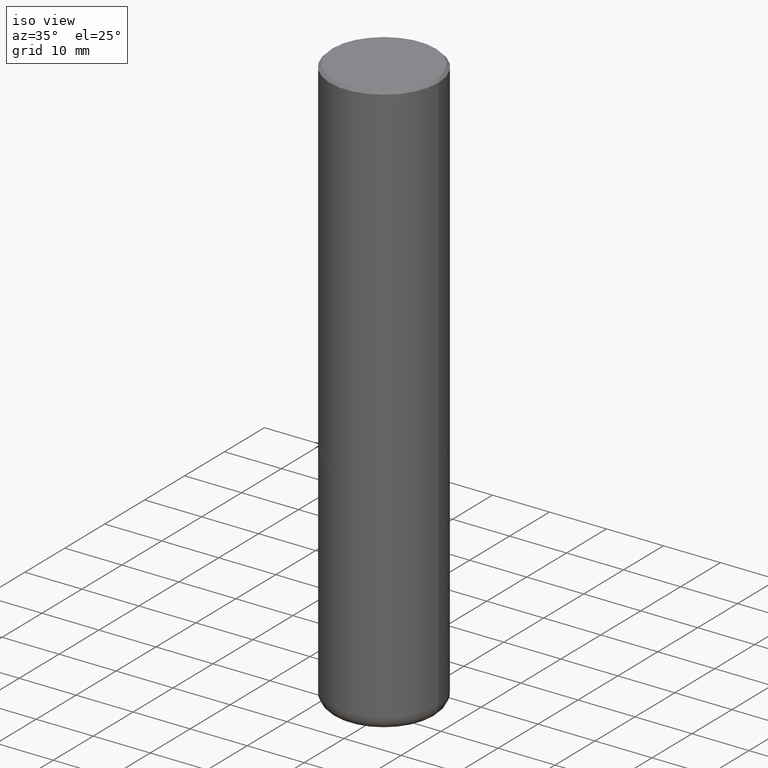
[diagram: clean part render]
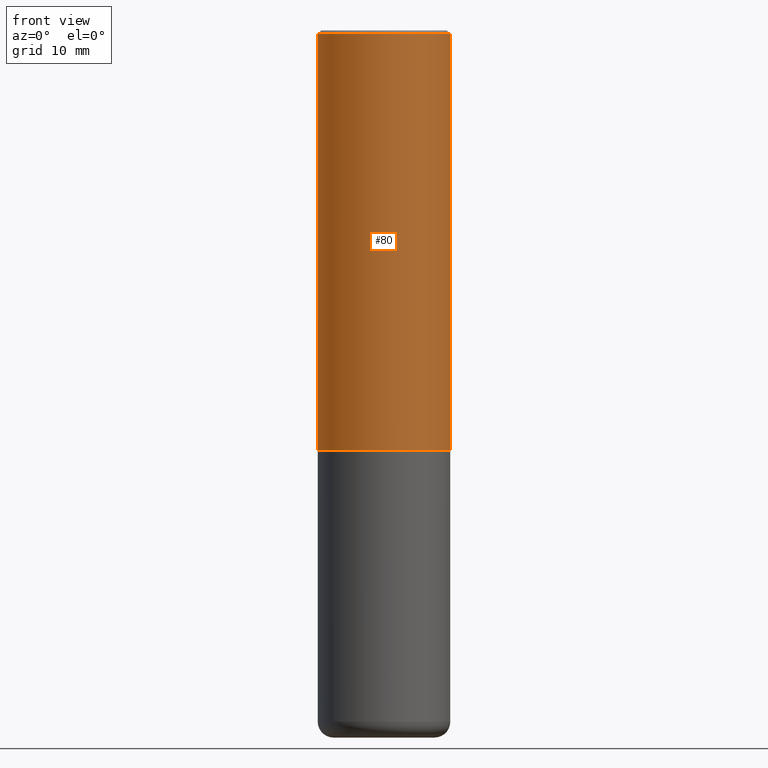
[diagram: tour spotlight — one face highlighted and labeled with its STEP entity id]
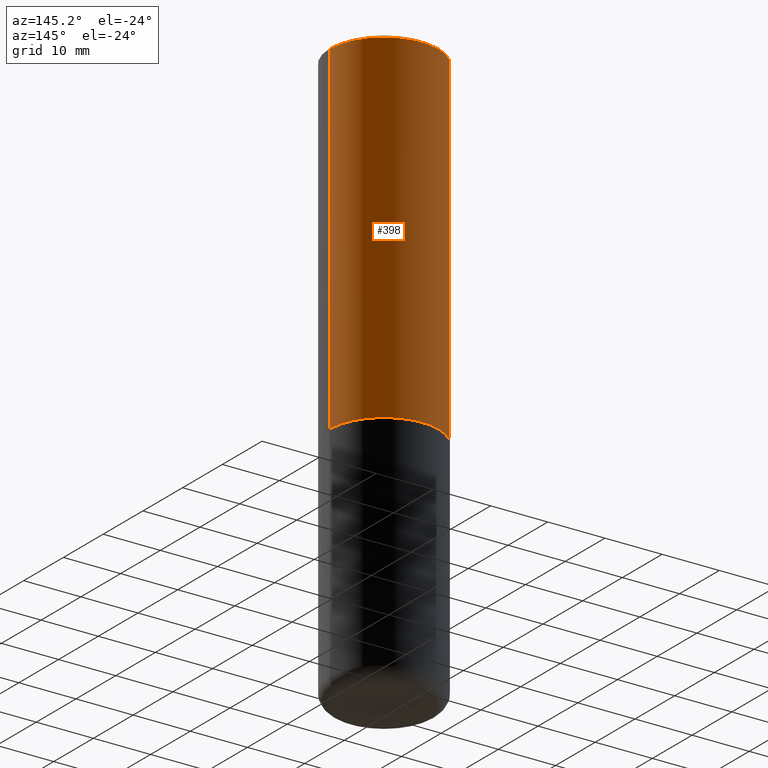
[diagram: tour spotlight — one face highlighted and labeled with its STEP entity id]
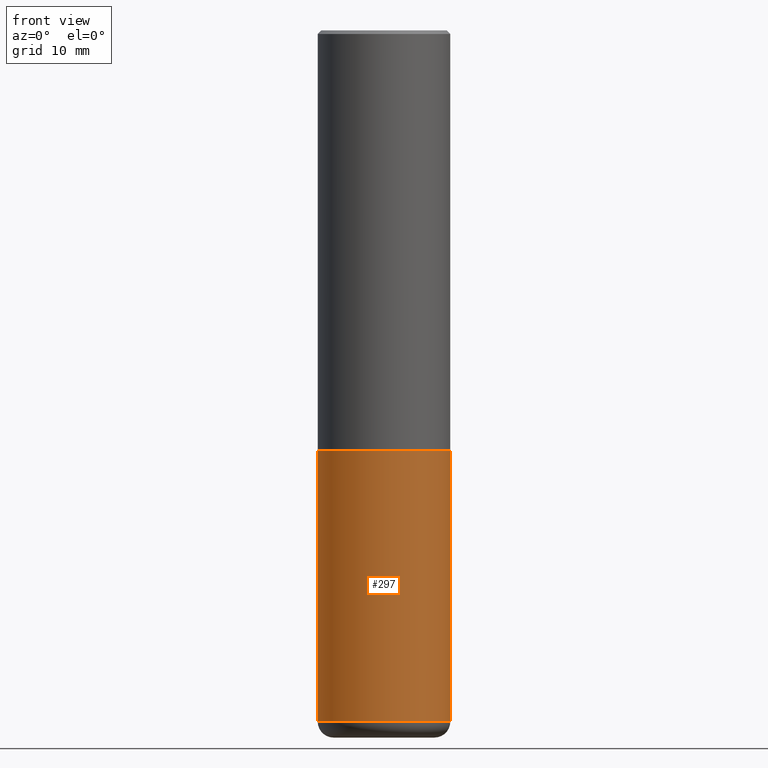
[diagram: tour spotlight — one face highlighted and labeled with its STEP entity id]
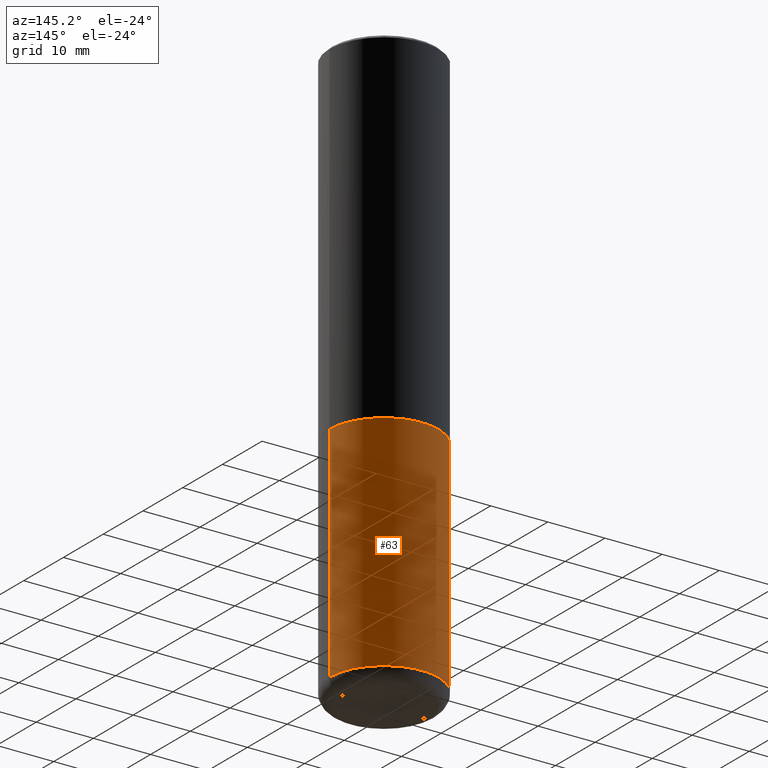
[diagram: tour spotlight — one face highlighted and labeled with its STEP entity id]
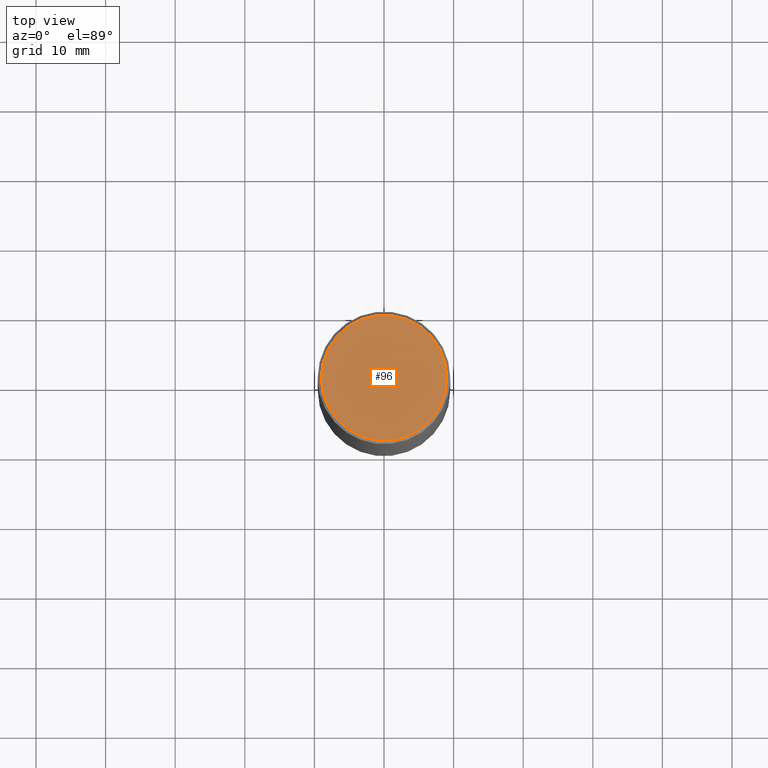
[diagram: tour spotlight — one face highlighted and labeled with its STEP entity id]
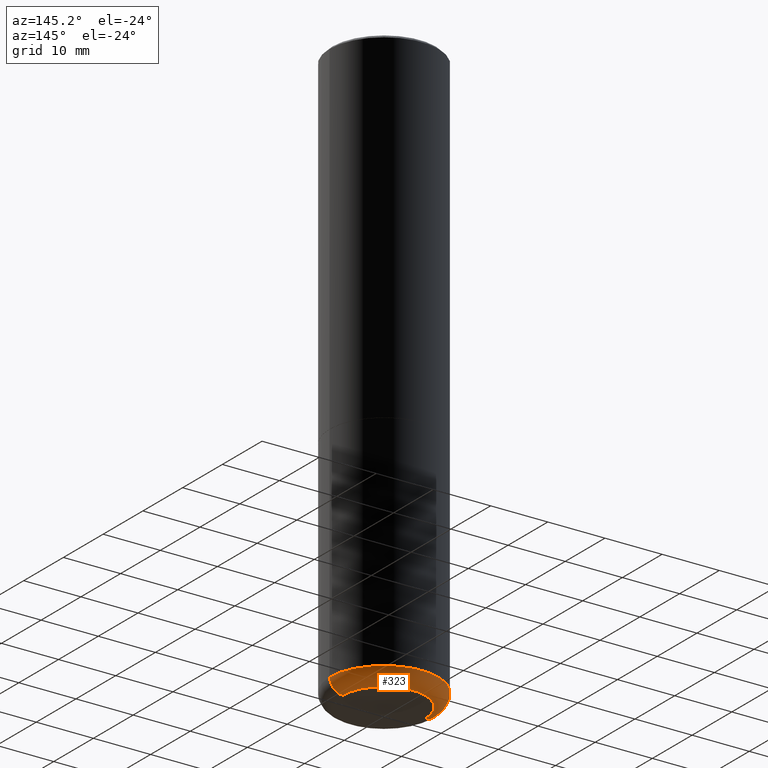
[diagram: tour spotlight — one face highlighted and labeled with its STEP entity id]
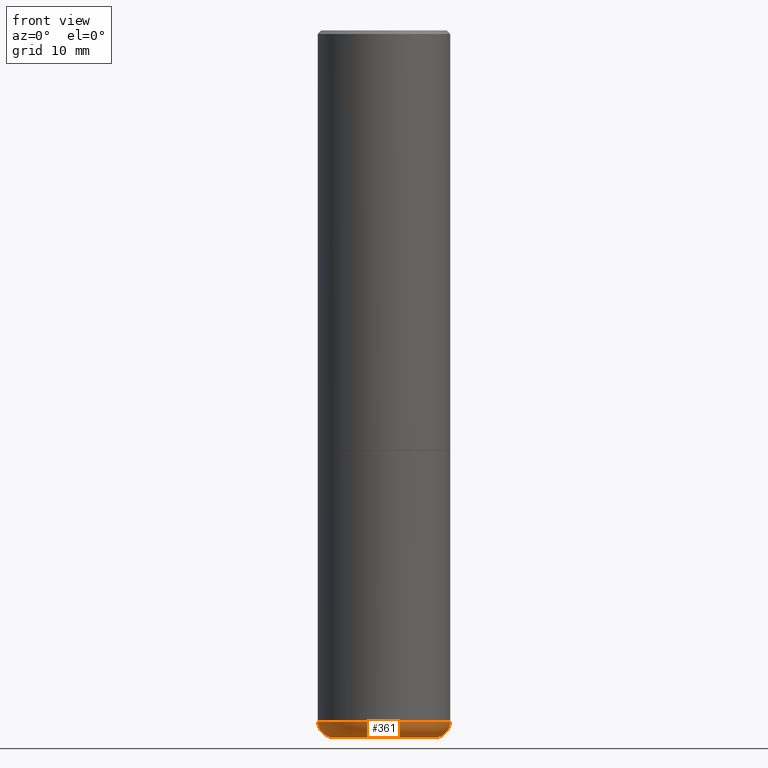
[diagram: tour spotlight — one face highlighted and labeled with its STEP entity id]
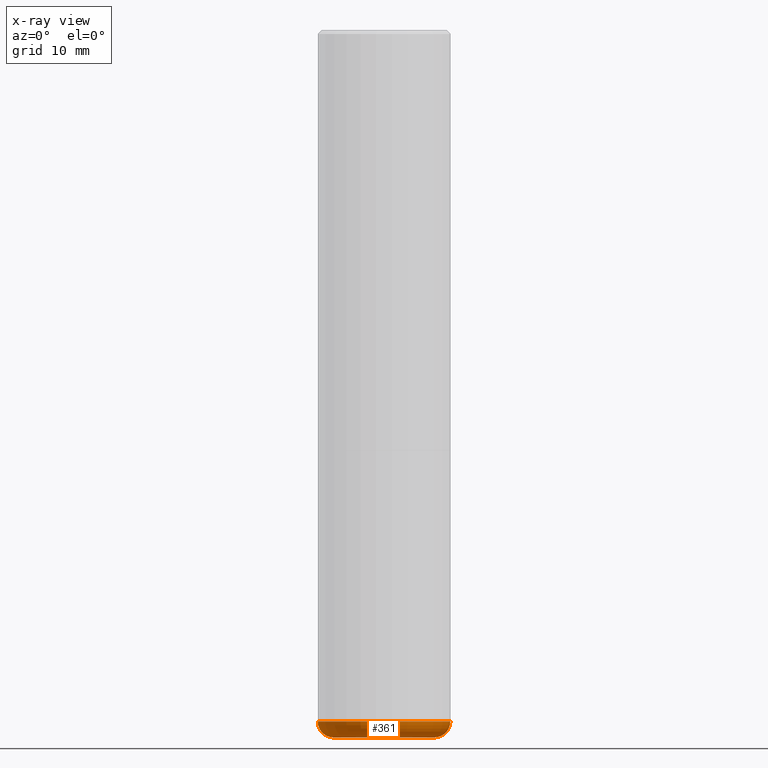
[diagram: x-ray of the same camera — body ghosted, this tour face saturated]
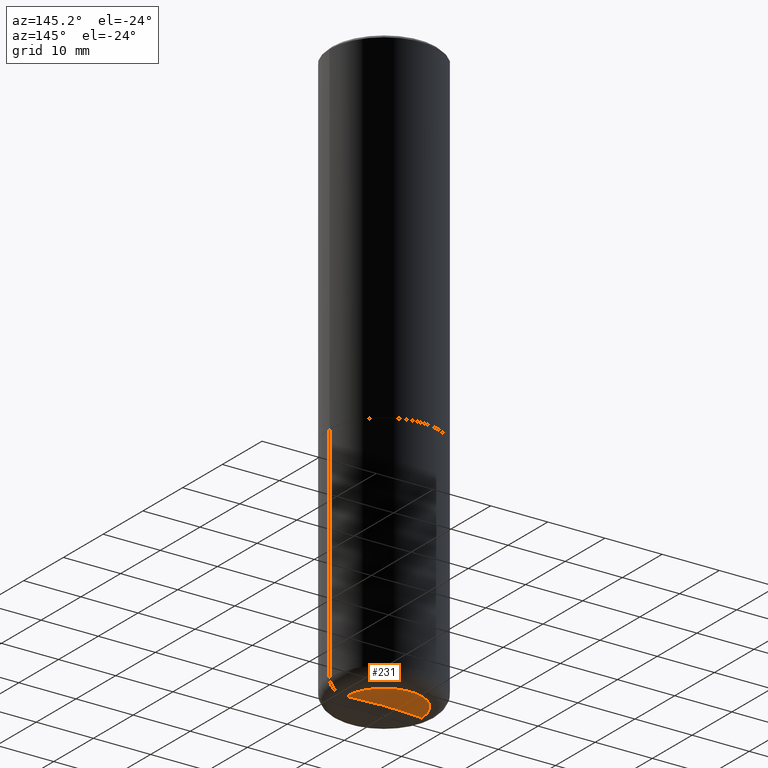
[diagram: tour spotlight — one face highlighted and labeled with its STEP entity id]
A machine part: a face-by-face anatomy tour. The part has 17 B-rep faces; the first image is the clean iso view, then the 8 largest visible faces are spotlighted one at a time (largest first), each with its STEP entity span.

Face 1 — front view, entity #80. In plain terms, the highlighted cylindrical surface (partial cylindrical patch) has radius 9.525 mm, axis along (-0, 0, 1).
Definition (entity closure, byte-faithful):
#21 = VERTEX_POINT ( 'NONE', #400 ) ;
#23 = ORIENTED_EDGE ( 'NONE', *, *, #30, .T. ) ;
#27 = DIRECTION ( 'NONE',  ( -2.445468806185136597E-29, 3.491481338843145583E-15, 1.000000000000000000 ) ) ;
#30 = EDGE_CURVE ( 'NONE', #169, #21, #163, .T. ) ;
#44 = EDGE_CURVE ( 'NONE', #122, #366, #446, .T. ) ;
#61 = CARTESIAN_POINT ( 'NONE',  ( 5.805542945883513814E-29, -8.288776698413627111E-15, -2.373999999999999666 ) ) ;
#71 = EDGE_CURVE ( 'NONE', #21, #366, #183, .T. ) ;
#79 = DIRECTION ( 'NONE',  ( -2.445468806185136877E-29, 3.491481338843145188E-15, 1.000000000000000000 ) ) ;
#80 = ADVANCED_FACE ( 'NONE', ( #178 ), #486, .T. ) ;
#90 = ORIENTED_EDGE ( 'NONE', *, *, #44, .F. ) ;
#98 = DIRECTION ( 'NONE',  ( 1.000000000000000000, -6.982962677686264344E-15, 0.000000000000000000 ) ) ;
#100 = VECTOR ( 'NONE', #292, 39.37007874015748143 ) ;
#103 = AXIS2_PLACEMENT_3D ( 'NONE', #61, #476, #98 ) ;
#106 = CARTESIAN_POINT ( 'NONE',  ( -0.3749999999999995559, -1.514767903494871085E-15, -2.373999999999999666 ) ) ;
#122 = VERTEX_POINT ( 'NONE', #388 ) ;
#132 = CARTESIAN_POINT ( 'NONE',  ( 4.890937612370313446E-31, -6.982962677686349541E-17, -0.02000000000000016695 ) ) ;
#137 = VECTOR ( 'NONE', #79, 39.37007874015748143 ) ;
#148 = CARTESIAN_POINT ( 'NONE',  ( 0.3749999999999992784, -2.642516375941182506E-15, -0.02000000000000016695 ) ) ;
#163 = CIRCLE ( 'NONE', #103, 0.3749999999999996114 ) ;
#169 = VERTEX_POINT ( 'NONE', #106 ) ;
#172 = EDGE_LOOP ( 'NONE', ( #354, #23, #317, #90 ) ) ;
#178 = FACE_OUTER_BOUND ( 'NONE', #172, .T. ) ;
#183 = LINE ( 'NONE', #250, #100 ) ;
#247 = DIRECTION ( 'NONE',  ( 1.000000000000000000, -6.982962677686267499E-15, 0.000000000000000000 ) ) ;
#250 = CARTESIAN_POINT ( 'NONE',  ( 0.3749999999999993894, -2.618611004132345678E-15, 1.828566290923473120E-29 ) ) ;
#254 = CARTESIAN_POINT ( 'NONE',  ( 0.000000000000000000, 0.000000000000000000, 0.000000000000000000 ) ) ;
#279 = EDGE_CURVE ( 'NONE', #169, #122, #307, .T. ) ;
#291 = AXIS2_PLACEMENT_3D ( 'NONE', #254, #27, #409 ) ;
#292 = DIRECTION ( 'NONE',  ( -2.445468806185136877E-29, 3.491481338843145188E-15, 1.000000000000000000 ) ) ;
#307 = LINE ( 'NONE', #418, #137 ) ;
#317 = ORIENTED_EDGE ( 'NONE', *, *, #71, .T. ) ;
#354 = ORIENTED_EDGE ( 'NONE', *, *, #279, .F. ) ;
#366 = VERTEX_POINT ( 'NONE', #148 ) ;
#388 = CARTESIAN_POINT ( 'NONE',  ( -0.3749999999999992784, 2.548781377355481985E-15, -0.02000000000000016695 ) ) ;
#389 = AXIS2_PLACEMENT_3D ( 'NONE', #132, #439, #247 ) ;
#400 = CARTESIAN_POINT ( 'NONE',  ( 0.3749999999999996114, -1.090738770254597397E-14, -2.373999999999999666 ) ) ;
#409 = DIRECTION ( 'NONE',  ( 1.000000000000000000, -6.982962677686266711E-15, 4.876176775795936353E-29 ) ) ;
#418 = CARTESIAN_POINT ( 'NONE',  ( -0.3749999999999993894, 2.664535259100371358E-15, -1.844600658845586515E-29 ) ) ;
#439 = DIRECTION ( 'NONE',  ( -2.445468806185136597E-29, 3.491481338843145583E-15, 1.000000000000000000 ) ) ;
#446 = CIRCLE ( 'NONE', #389, 0.3749999999999992784 ) ;
#476 = DIRECTION ( 'NONE',  ( -2.445468806185136597E-29, 3.491481338843145583E-15, 1.000000000000000000 ) ) ;
#486 = CYLINDRICAL_SURFACE ( 'NONE', #291, 0.3749999999999993894 ) ;

Face 2 — auxiliary view, entity #398. In plain terms, the highlighted cylindrical surface (partial cylindrical patch) has radius 9.525 mm, axis along (-0, 0, 1).
Definition (entity closure, byte-faithful):
#1 = EDGE_CURVE ( 'NONE', #366, #122, #339, .T. ) ;
#5 = DIRECTION ( 'NONE',  ( -2.445468806185136597E-29, 3.491481338843145583E-15, 1.000000000000000000 ) ) ;
#11 = DIRECTION ( 'NONE',  ( 1.000000000000000000, -6.982962677686267499E-15, 0.000000000000000000 ) ) ;
#21 = VERTEX_POINT ( 'NONE', #400 ) ;
#38 = AXIS2_PLACEMENT_3D ( 'NONE', #285, #200, #11 ) ;
#71 = EDGE_CURVE ( 'NONE', #21, #366, #183, .T. ) ;
#79 = DIRECTION ( 'NONE',  ( -2.445468806185136877E-29, 3.491481338843145188E-15, 1.000000000000000000 ) ) ;
#100 = VECTOR ( 'NONE', #292, 39.37007874015748143 ) ;
#106 = CARTESIAN_POINT ( 'NONE',  ( -0.3749999999999995559, -1.514767903494871085E-15, -2.373999999999999666 ) ) ;
#122 = VERTEX_POINT ( 'NONE', #388 ) ;
#137 = VECTOR ( 'NONE', #79, 39.37007874015748143 ) ;
#148 = CARTESIAN_POINT ( 'NONE',  ( 0.3749999999999992784, -2.642516375941182506E-15, -0.02000000000000016695 ) ) ;
#167 = EDGE_LOOP ( 'NONE', ( #425, #380, #240, #245 ) ) ;
#169 = VERTEX_POINT ( 'NONE', #106 ) ;
#183 = LINE ( 'NONE', #250, #100 ) ;
#185 = CARTESIAN_POINT ( 'NONE',  ( 5.805542945883513814E-29, -8.288776698413627111E-15, -2.373999999999999666 ) ) ;
#187 = AXIS2_PLACEMENT_3D ( 'NONE', #185, #5, #338 ) ;
#195 = CYLINDRICAL_SURFACE ( 'NONE', #383, 0.3749999999999993894 ) ;
#200 = DIRECTION ( 'NONE',  ( -2.445468806185136597E-29, 3.491481338843145583E-15, 1.000000000000000000 ) ) ;
#227 = EDGE_CURVE ( 'NONE', #21, #169, #411, .T. ) ;
#240 = ORIENTED_EDGE ( 'NONE', *, *, #1, .F. ) ;
#245 = ORIENTED_EDGE ( 'NONE', *, *, #71, .F. ) ;
#250 = CARTESIAN_POINT ( 'NONE',  ( 0.3749999999999993894, -2.618611004132345678E-15, 1.828566290923473120E-29 ) ) ;
#265 = CARTESIAN_POINT ( 'NONE',  ( 0.000000000000000000, 0.000000000000000000, 0.000000000000000000 ) ) ;
#273 = DIRECTION ( 'NONE',  ( 1.000000000000000000, -6.982962677686266711E-15, 4.876176775795936353E-29 ) ) ;
#279 = EDGE_CURVE ( 'NONE', #169, #122, #307, .T. ) ;
#285 = CARTESIAN_POINT ( 'NONE',  ( 4.890937612370313446E-31, -6.982962677686349541E-17, -0.02000000000000016695 ) ) ;
#292 = DIRECTION ( 'NONE',  ( -2.445468806185136877E-29, 3.491481338843145188E-15, 1.000000000000000000 ) ) ;
#307 = LINE ( 'NONE', #418, #137 ) ;
#338 = DIRECTION ( 'NONE',  ( 1.000000000000000000, -6.982962677686264344E-15, 0.000000000000000000 ) ) ;
#339 = CIRCLE ( 'NONE', #38, 0.3749999999999992784 ) ;
#366 = VERTEX_POINT ( 'NONE', #148 ) ;
#380 = ORIENTED_EDGE ( 'NONE', *, *, #279, .T. ) ;
#383 = AXIS2_PLACEMENT_3D ( 'NONE', #265, #421, #273 ) ;
#388 = CARTESIAN_POINT ( 'NONE',  ( -0.3749999999999992784, 2.548781377355481985E-15, -0.02000000000000016695 ) ) ;
#398 = ADVANCED_FACE ( 'NONE', ( #459 ), #195, .T. ) ;
#400 = CARTESIAN_POINT ( 'NONE',  ( 0.3749999999999996114, -1.090738770254597397E-14, -2.373999999999999666 ) ) ;
#411 = CIRCLE ( 'NONE', #187, 0.3749999999999996114 ) ;
#418 = CARTESIAN_POINT ( 'NONE',  ( -0.3749999999999993894, 2.664535259100371358E-15, -1.844600658845586515E-29 ) ) ;
#421 = DIRECTION ( 'NONE',  ( -2.445468806185136597E-29, 3.491481338843145583E-15, 1.000000000000000000 ) ) ;
#425 = ORIENTED_EDGE ( 'NONE', *, *, #227, .T. ) ;
#459 = FACE_OUTER_BOUND ( 'NONE', #167, .T. ) ;

Face 3 — front view, entity #297. In plain terms, the highlighted cylindrical surface (partial cylindrical patch) has radius 9.525 mm, axis along (-0, 0, 1).
Definition (entity closure, byte-faithful):
#6 = VECTOR ( 'NONE', #206, 39.37007874015748143 ) ;
#12 = VERTEX_POINT ( 'NONE', #244 ) ;
#14 = AXIS2_PLACEMENT_3D ( 'NONE', #303, #262, #386 ) ;
#37 = ORIENTED_EDGE ( 'NONE', *, *, #443, .F. ) ;
#50 = VERTEX_POINT ( 'NONE', #217 ) ;
#54 = ORIENTED_EDGE ( 'NONE', *, *, #433, .T. ) ;
#82 = CARTESIAN_POINT ( 'NONE',  ( 5.807988414689699417E-29, -8.292268179752470118E-15, -2.375000000000000000 ) ) ;
#116 = DIRECTION ( 'NONE',  ( 1.000000000000000000, -6.982962677686264344E-15, 0.000000000000000000 ) ) ;
#130 = EDGE_CURVE ( 'NONE', #50, #276, #404, .T. ) ;
#151 = CYLINDRICAL_SURFACE ( 'NONE', #481, 0.3749999999999998335 ) ;
#171 = DIRECTION ( 'NONE',  ( -2.445468806185136877E-29, 3.491481338843145188E-15, 1.000000000000000000 ) ) ;
#191 = CARTESIAN_POINT ( 'NONE',  ( 0.3749999999999996114, -1.091087918388481698E-14, -2.375000000000000000 ) ) ;
#193 = DIRECTION ( 'NONE',  ( -2.445468806185136597E-29, 3.491481338843145583E-15, 1.000000000000000000 ) ) ;
#206 = DIRECTION ( 'NONE',  ( -2.445468806185136877E-29, 3.491481338843145188E-15, 1.000000000000000000 ) ) ;
#215 = EDGE_CURVE ( 'NONE', #397, #12, #419, .T. ) ;
#217 = CARTESIAN_POINT ( 'NONE',  ( -0.3749999999999996114, -8.307450830735199012E-15, -2.375000000000000000 ) ) ;
#222 = DIRECTION ( 'NONE',  ( -2.445468806185136597E-29, 3.491481338843145583E-15, 1.000000000000000000 ) ) ;
#239 = CARTESIAN_POINT ( 'NONE',  ( 0.3749999999999998335, -2.618611004132348439E-15, 1.828566290923475082E-29 ) ) ;
#244 = CARTESIAN_POINT ( 'NONE',  ( 0.3750000000000001110, -1.627031500405102774E-14, -3.910003426924224534 ) ) ;
#262 = DIRECTION ( 'NONE',  ( -2.445468806185136597E-29, 3.491481338843145583E-15, 1.000000000000000000 ) ) ;
#263 = DIRECTION ( 'NONE',  ( 1.000000000000000000, -6.982962677686265922E-15, 4.876176775795935793E-29 ) ) ;
#275 = EDGE_LOOP ( 'NONE', ( #37, #435, #54, #394 ) ) ;
#276 = VERTEX_POINT ( 'NONE', #191 ) ;
#277 = CARTESIAN_POINT ( 'NONE',  ( -0.3750000000000001110, -8.307450830735194279E-15, -3.910003426924224534 ) ) ;
#281 = LINE ( 'NONE', #359, #6 ) ;
#297 = ADVANCED_FACE ( 'NONE', ( #346 ), #151, .T. ) ;
#300 = VECTOR ( 'NONE', #171, 39.37007874015748143 ) ;
#303 = CARTESIAN_POINT ( 'NONE',  ( 9.561791412620176703E-29, -1.365170399991867772E-14, -3.910003426924224534 ) ) ;
#346 = FACE_OUTER_BOUND ( 'NONE', #275, .T. ) ;
#350 = CARTESIAN_POINT ( 'NONE',  ( 0.000000000000000000, 0.000000000000000000, 0.000000000000000000 ) ) ;
#359 = CARTESIAN_POINT ( 'NONE',  ( -0.3749999999999998335, 2.664535259100374514E-15, -1.844600658845588757E-29 ) ) ;
#386 = DIRECTION ( 'NONE',  ( 1.000000000000000000, -6.982962677686265922E-15, 0.000000000000000000 ) ) ;
#394 = ORIENTED_EDGE ( 'NONE', *, *, #130, .F. ) ;
#397 = VERTEX_POINT ( 'NONE', #277 ) ;
#404 = CIRCLE ( 'NONE', #489, 0.3749999999999996114 ) ;
#419 = CIRCLE ( 'NONE', #14, 0.3750000000000001110 ) ;
#433 = EDGE_CURVE ( 'NONE', #12, #276, #473, .T. ) ;
#435 = ORIENTED_EDGE ( 'NONE', *, *, #215, .T. ) ;
#443 = EDGE_CURVE ( 'NONE', #397, #50, #281, .T. ) ;
#473 = LINE ( 'NONE', #239, #300 ) ;
#481 = AXIS2_PLACEMENT_3D ( 'NONE', #350, #193, #263 ) ;
#489 = AXIS2_PLACEMENT_3D ( 'NONE', #82, #222, #116 ) ;

Face 4 — auxiliary view, entity #63. In plain terms, the highlighted cylindrical surface (partial cylindrical patch) has radius 9.525 mm, axis along (-0, 0, 1).
Definition (entity closure, byte-faithful):
#2 = DIRECTION ( 'NONE',  ( 1.000000000000000000, -6.982962677686264344E-15, 0.000000000000000000 ) ) ;
#6 = VECTOR ( 'NONE', #206, 39.37007874015748143 ) ;
#12 = VERTEX_POINT ( 'NONE', #244 ) ;
#16 = ORIENTED_EDGE ( 'NONE', *, *, #443, .T. ) ;
#29 = CARTESIAN_POINT ( 'NONE',  ( 0.000000000000000000, 0.000000000000000000, 0.000000000000000000 ) ) ;
#31 = DIRECTION ( 'NONE',  ( 1.000000000000000000, -6.982962677686265922E-15, 4.876176775795935793E-29 ) ) ;
#39 = AXIS2_PLACEMENT_3D ( 'NONE', #155, #415, #75 ) ;
#50 = VERTEX_POINT ( 'NONE', #217 ) ;
#63 = ADVANCED_FACE ( 'NONE', ( #336 ), #99, .T. ) ;
#66 = CIRCLE ( 'NONE', #133, 0.3749999999999996114 ) ;
#75 = DIRECTION ( 'NONE',  ( 1.000000000000000000, -6.982962677686265922E-15, 0.000000000000000000 ) ) ;
#99 = CYLINDRICAL_SURFACE ( 'NONE', #212, 0.3749999999999998335 ) ;
#133 = AXIS2_PLACEMENT_3D ( 'NONE', #219, #348, #2 ) ;
#155 = CARTESIAN_POINT ( 'NONE',  ( 9.561791412620176703E-29, -1.365170399991867772E-14, -3.910003426924224534 ) ) ;
#171 = DIRECTION ( 'NONE',  ( -2.445468806185136877E-29, 3.491481338843145188E-15, 1.000000000000000000 ) ) ;
#191 = CARTESIAN_POINT ( 'NONE',  ( 0.3749999999999996114, -1.091087918388481698E-14, -2.375000000000000000 ) ) ;
#192 = EDGE_CURVE ( 'NONE', #276, #50, #66, .T. ) ;
#198 = ORIENTED_EDGE ( 'NONE', *, *, #192, .F. ) ;
#201 = ORIENTED_EDGE ( 'NONE', *, *, #433, .F. ) ;
#206 = DIRECTION ( 'NONE',  ( -2.445468806185136877E-29, 3.491481338843145188E-15, 1.000000000000000000 ) ) ;
#209 = ORIENTED_EDGE ( 'NONE', *, *, #246, .T. ) ;
#212 = AXIS2_PLACEMENT_3D ( 'NONE', #29, #256, #31 ) ;
#217 = CARTESIAN_POINT ( 'NONE',  ( -0.3749999999999996114, -8.307450830735199012E-15, -2.375000000000000000 ) ) ;
#219 = CARTESIAN_POINT ( 'NONE',  ( 5.807988414689699417E-29, -8.292268179752470118E-15, -2.375000000000000000 ) ) ;
#239 = CARTESIAN_POINT ( 'NONE',  ( 0.3749999999999998335, -2.618611004132348439E-15, 1.828566290923475082E-29 ) ) ;
#244 = CARTESIAN_POINT ( 'NONE',  ( 0.3750000000000001110, -1.627031500405102774E-14, -3.910003426924224534 ) ) ;
#246 = EDGE_CURVE ( 'NONE', #12, #397, #469, .T. ) ;
#256 = DIRECTION ( 'NONE',  ( -2.445468806185136597E-29, 3.491481338843145583E-15, 1.000000000000000000 ) ) ;
#276 = VERTEX_POINT ( 'NONE', #191 ) ;
#277 = CARTESIAN_POINT ( 'NONE',  ( -0.3750000000000001110, -8.307450830735194279E-15, -3.910003426924224534 ) ) ;
#281 = LINE ( 'NONE', #359, #6 ) ;
#300 = VECTOR ( 'NONE', #171, 39.37007874015748143 ) ;
#315 = EDGE_LOOP ( 'NONE', ( #209, #16, #198, #201 ) ) ;
#336 = FACE_OUTER_BOUND ( 'NONE', #315, .T. ) ;
#348 = DIRECTION ( 'NONE',  ( -2.445468806185136597E-29, 3.491481338843145583E-15, 1.000000000000000000 ) ) ;
#359 = CARTESIAN_POINT ( 'NONE',  ( -0.3749999999999998335, 2.664535259100374514E-15, -1.844600658845588757E-29 ) ) ;
#397 = VERTEX_POINT ( 'NONE', #277 ) ;
#415 = DIRECTION ( 'NONE',  ( -2.445468806185136597E-29, 3.491481338843145583E-15, 1.000000000000000000 ) ) ;
#433 = EDGE_CURVE ( 'NONE', #12, #276, #473, .T. ) ;
#443 = EDGE_CURVE ( 'NONE', #397, #50, #281, .T. ) ;
#469 = CIRCLE ( 'NONE', #39, 0.3750000000000001110 ) ;
#473 = LINE ( 'NONE', #239, #300 ) ;

Face 5 — top view, entity #96. In plain terms, the highlighted planar face has unit normal (0, -0, -1).
Definition (entity closure, byte-faithful):
#25 = CIRCLE ( 'NONE', #278, 0.3549999999999992051 ) ;
#58 = CIRCLE ( 'NONE', #390, 0.3549999999999992051 ) ;
#96 = ADVANCED_FACE ( 'NONE', ( #372 ), #479, .F. ) ;
#104 = AXIS2_PLACEMENT_3D ( 'NONE', #181, #135, #335 ) ;
#112 = EDGE_CURVE ( 'NONE', #314, #427, #58, .T. ) ;
#135 = DIRECTION ( 'NONE',  ( 2.438088387897960049E-29, -3.491481338843145188E-15, -1.000000000000000000 ) ) ;
#139 = EDGE_CURVE ( 'NONE', #427, #314, #25, .T. ) ;
#181 = CARTESIAN_POINT ( 'NONE',  ( 2.478951750578619081E-15, 0.3549999999999992051, -1.237341619044263666E-15 ) ) ;
#194 = DIRECTION ( 'NONE',  ( 1.000000000000000000, -6.982962677686266711E-15, 4.876231632511998833E-29 ) ) ;
#229 = DIRECTION ( 'NONE',  ( 1.000000000000000000, -6.982962677686266711E-15, 4.876231632511998833E-29 ) ) ;
#232 = DIRECTION ( 'NONE',  ( -2.445468806185136597E-29, 3.491481338843145583E-15, 1.000000000000000000 ) ) ;
#243 = CARTESIAN_POINT ( 'NONE',  ( -0.3549999999999992051, 2.513866563967050730E-15, 4.268512490082953109E-18 ) ) ;
#278 = AXIS2_PLACEMENT_3D ( 'NONE', #381, #460, #194 ) ;
#314 = VERTEX_POINT ( 'NONE', #463 ) ;
#324 = ORIENTED_EDGE ( 'NONE', *, *, #112, .T. ) ;
#335 = DIRECTION ( 'NONE',  ( -1.000000000000000000, 6.982962677686265922E-15, -4.876176775795935793E-29 ) ) ;
#343 = CARTESIAN_POINT ( 'NONE',  ( -1.043851414335219820E-46, 1.490343170380447200E-32, 4.268512490100411279E-18 ) ) ;
#372 = FACE_OUTER_BOUND ( 'NONE', #416, .T. ) ;
#381 = CARTESIAN_POINT ( 'NONE',  ( -1.043851414335219820E-46, 1.490343170380447200E-32, 4.268512490100411279E-18 ) ) ;
#390 = AXIS2_PLACEMENT_3D ( 'NONE', #343, #232, #229 ) ;
#396 = ORIENTED_EDGE ( 'NONE', *, *, #139, .T. ) ;
#416 = EDGE_LOOP ( 'NONE', ( #396, #324 ) ) ;
#427 = VERTEX_POINT ( 'NONE', #243 ) ;
#460 = DIRECTION ( 'NONE',  ( -2.445468806185136597E-29, 3.491481338843145583E-15, 1.000000000000000000 ) ) ;
#463 = CARTESIAN_POINT ( 'NONE',  ( 0.3549999999999992051, -2.538996582575035526E-15, 4.268512490117958041E-18 ) ) ;
#479 = PLANE ( 'NONE',  #104 ) ;

Face 6 — auxiliary view, entity #323. In plain terms, the highlighted toroidal blend (fillet) surface has major radius 7.239 mm and minor (blend) radius 2.286 mm.
Definition (entity closure, byte-faithful):
#12 = VERTEX_POINT ( 'NONE', #244 ) ;
#20 = DIRECTION ( 'NONE',  ( 7.105427357601001859E-15, 1.000000000000000000, -3.491481338843145583E-15 ) ) ;
#33 = CIRCLE ( 'NONE', #59, 0.08999999999999985789 ) ;
#35 = CARTESIAN_POINT ( 'NONE',  ( 0.2842146118051471215, -1.595058538206101543E-14, -4.000000000000000000 ) ) ;
#39 = AXIS2_PLACEMENT_3D ( 'NONE', #155, #415, #75 ) ;
#59 = AXIS2_PLACEMENT_3D ( 'NONE', #248, #330, #157 ) ;
#68 = DIRECTION ( 'NONE',  ( -2.445468806185136597E-29, 3.491481338843145583E-15, 1.000000000000000000 ) ) ;
#75 = DIRECTION ( 'NONE',  ( 1.000000000000000000, -6.982962677686265922E-15, 0.000000000000000000 ) ) ;
#108 = FACE_OUTER_BOUND ( 'NONE', #322, .T. ) ;
#110 = EDGE_CURVE ( 'NONE', #211, #284, #235, .T. ) ;
#138 = CIRCLE ( 'NONE', #373, 0.08999999999999985789 ) ;
#143 = AXIS2_PLACEMENT_3D ( 'NONE', #313, #145, #345 ) ;
#145 = DIRECTION ( 'NONE',  ( -2.445468806185136597E-29, 3.491481338843145583E-15, 1.000000000000000000 ) ) ;
#155 = CARTESIAN_POINT ( 'NONE',  ( 9.561791412620176703E-29, -1.365170399991867772E-14, -3.910003426924224534 ) ) ;
#157 = DIRECTION ( 'NONE',  ( 1.000000000000000000, -6.982962677686257244E-15, 0.000000000000000000 ) ) ;
#162 = ORIENTED_EDGE ( 'NONE', *, *, #110, .T. ) ;
#164 = TOROIDAL_SURFACE ( 'NONE', #143, 0.2850000000000003086, 0.08999999999999987177 ) ;
#211 = VERTEX_POINT ( 'NONE', #35 ) ;
#226 = CARTESIAN_POINT ( 'NONE',  ( -0.2842146118051471215, -1.146681390902031989E-14, -4.000000000000000000 ) ) ;
#235 = CIRCLE ( 'NONE', #331, 0.2842146118051471215 ) ;
#241 = CARTESIAN_POINT ( 'NONE',  ( -0.2850000000000003086, -1.162665720300238961E-14, -3.910003426924224534 ) ) ;
#244 = CARTESIAN_POINT ( 'NONE',  ( 0.3750000000000001110, -1.627031500405102774E-14, -3.910003426924224534 ) ) ;
#246 = EDGE_CURVE ( 'NONE', #12, #397, #469, .T. ) ;
#248 = CARTESIAN_POINT ( 'NONE',  ( 0.2850000000000003086, -1.564184836305926752E-14, -3.910003426924224534 ) ) ;
#277 = CARTESIAN_POINT ( 'NONE',  ( -0.3750000000000001110, -8.307450830735194279E-15, -3.910003426924224534 ) ) ;
#284 = VERTEX_POINT ( 'NONE', #226 ) ;
#313 = CARTESIAN_POINT ( 'NONE',  ( 9.561791412620176703E-29, -1.365170399991867772E-14, -3.910003426924224534 ) ) ;
#321 = DIRECTION ( 'NONE',  ( -1.000000000000000000, 7.105427357601001859E-15, 0.000000000000000000 ) ) ;
#322 = EDGE_LOOP ( 'NONE', ( #162, #401, #477, #392 ) ) ;
#323 = ADVANCED_FACE ( 'NONE', ( #108 ), #164, .T. ) ;
#330 = DIRECTION ( 'NONE',  ( -6.982962677686266711E-15, -1.000000000000000000, 3.491481338843145583E-15 ) ) ;
#331 = AXIS2_PLACEMENT_3D ( 'NONE', #405, #68, #368 ) ;
#345 = DIRECTION ( 'NONE',  ( 1.000000000000000000, -6.982962677686265133E-15, 4.883557194083112340E-29 ) ) ;
#368 = DIRECTION ( 'NONE',  ( 1.000000000000000000, -6.982962677686267499E-15, 0.000000000000000000 ) ) ;
#373 = AXIS2_PLACEMENT_3D ( 'NONE', #241, #20, #321 ) ;
#392 = ORIENTED_EDGE ( 'NONE', *, *, #410, .F. ) ;
#397 = VERTEX_POINT ( 'NONE', #277 ) ;
#401 = ORIENTED_EDGE ( 'NONE', *, *, #445, .T. ) ;
#405 = CARTESIAN_POINT ( 'NONE',  ( 9.781875224740546387E-29, -1.396592535537258233E-14, -4.000000000000000000 ) ) ;
#410 = EDGE_CURVE ( 'NONE', #211, #12, #33, .T. ) ;
#415 = DIRECTION ( 'NONE',  ( -2.445468806185136597E-29, 3.491481338843145583E-15, 1.000000000000000000 ) ) ;
#445 = EDGE_CURVE ( 'NONE', #284, #397, #138, .T. ) ;
#469 = CIRCLE ( 'NONE', #39, 0.3750000000000001110 ) ;
#477 = ORIENTED_EDGE ( 'NONE', *, *, #246, .F. ) ;

Face 7 — front view, entity #361. An x-ray twin of the same camera follows (body ghosted, this face saturated) — the face is partly hidden behind the body. In plain terms, the highlighted toroidal blend (fillet) surface has major radius 7.239 mm and minor (blend) radius 2.286 mm.
Definition (entity closure, byte-faithful):
#12 = VERTEX_POINT ( 'NONE', #244 ) ;
#14 = AXIS2_PLACEMENT_3D ( 'NONE', #303, #262, #386 ) ;
#15 = AXIS2_PLACEMENT_3D ( 'NONE', #312, #237, #436 ) ;
#20 = DIRECTION ( 'NONE',  ( 7.105427357601001859E-15, 1.000000000000000000, -3.491481338843145583E-15 ) ) ;
#33 = CIRCLE ( 'NONE', #59, 0.08999999999999985789 ) ;
#35 = CARTESIAN_POINT ( 'NONE',  ( 0.2842146118051471215, -1.595058538206101543E-14, -4.000000000000000000 ) ) ;
#52 = ORIENTED_EDGE ( 'NONE', *, *, #445, .F. ) ;
#59 = AXIS2_PLACEMENT_3D ( 'NONE', #248, #330, #157 ) ;
#78 = DIRECTION ( 'NONE',  ( -2.445468806185136597E-29, 3.491481338843145583E-15, 1.000000000000000000 ) ) ;
#97 = ORIENTED_EDGE ( 'NONE', *, *, #215, .F. ) ;
#138 = CIRCLE ( 'NONE', #373, 0.08999999999999985789 ) ;
#157 = DIRECTION ( 'NONE',  ( 1.000000000000000000, -6.982962677686257244E-15, 0.000000000000000000 ) ) ;
#159 = EDGE_LOOP ( 'NONE', ( #52, #286, #294, #97 ) ) ;
#211 = VERTEX_POINT ( 'NONE', #35 ) ;
#215 = EDGE_CURVE ( 'NONE', #397, #12, #419, .T. ) ;
#221 = CARTESIAN_POINT ( 'NONE',  ( 9.561791412620176703E-29, -1.365170399991867772E-14, -3.910003426924224534 ) ) ;
#226 = CARTESIAN_POINT ( 'NONE',  ( -0.2842146118051471215, -1.146681390902031989E-14, -4.000000000000000000 ) ) ;
#237 = DIRECTION ( 'NONE',  ( -2.445468806185136597E-29, 3.491481338843145583E-15, 1.000000000000000000 ) ) ;
#241 = CARTESIAN_POINT ( 'NONE',  ( -0.2850000000000003086, -1.162665720300238961E-14, -3.910003426924224534 ) ) ;
#244 = CARTESIAN_POINT ( 'NONE',  ( 0.3750000000000001110, -1.627031500405102774E-14, -3.910003426924224534 ) ) ;
#248 = CARTESIAN_POINT ( 'NONE',  ( 0.2850000000000003086, -1.564184836305926752E-14, -3.910003426924224534 ) ) ;
#262 = DIRECTION ( 'NONE',  ( -2.445468806185136597E-29, 3.491481338843145583E-15, 1.000000000000000000 ) ) ;
#277 = CARTESIAN_POINT ( 'NONE',  ( -0.3750000000000001110, -8.307450830735194279E-15, -3.910003426924224534 ) ) ;
#284 = VERTEX_POINT ( 'NONE', #226 ) ;
#286 = ORIENTED_EDGE ( 'NONE', *, *, #434, .T. ) ;
#288 = CIRCLE ( 'NONE', #15, 0.2842146118051471215 ) ;
#293 = AXIS2_PLACEMENT_3D ( 'NONE', #221, #78, #491 ) ;
#294 = ORIENTED_EDGE ( 'NONE', *, *, #410, .T. ) ;
#303 = CARTESIAN_POINT ( 'NONE',  ( 9.561791412620176703E-29, -1.365170399991867772E-14, -3.910003426924224534 ) ) ;
#312 = CARTESIAN_POINT ( 'NONE',  ( 9.781875224740546387E-29, -1.396592535537258233E-14, -4.000000000000000000 ) ) ;
#321 = DIRECTION ( 'NONE',  ( -1.000000000000000000, 7.105427357601001859E-15, 0.000000000000000000 ) ) ;
#326 = TOROIDAL_SURFACE ( 'NONE', #293, 0.2850000000000003086, 0.08999999999999987177 ) ;
#330 = DIRECTION ( 'NONE',  ( -6.982962677686266711E-15, -1.000000000000000000, 3.491481338843145583E-15 ) ) ;
#361 = ADVANCED_FACE ( 'NONE', ( #414 ), #326, .T. ) ;
#373 = AXIS2_PLACEMENT_3D ( 'NONE', #241, #20, #321 ) ;
#386 = DIRECTION ( 'NONE',  ( 1.000000000000000000, -6.982962677686265922E-15, 0.000000000000000000 ) ) ;
#397 = VERTEX_POINT ( 'NONE', #277 ) ;
#410 = EDGE_CURVE ( 'NONE', #211, #12, #33, .T. ) ;
#414 = FACE_OUTER_BOUND ( 'NONE', #159, .T. ) ;
#419 = CIRCLE ( 'NONE', #14, 0.3750000000000001110 ) ;
#434 = EDGE_CURVE ( 'NONE', #284, #211, #288, .T. ) ;
#436 = DIRECTION ( 'NONE',  ( 1.000000000000000000, -6.982962677686267499E-15, 0.000000000000000000 ) ) ;
#445 = EDGE_CURVE ( 'NONE', #284, #397, #138, .T. ) ;
#491 = DIRECTION ( 'NONE',  ( 1.000000000000000000, -6.982962677686265133E-15, 4.883557194083112340E-29 ) ) ;

Face 8 — auxiliary view, entity #231. In plain terms, the highlighted conical surface has half-angle 88 deg.
Definition (entity closure, byte-faithful):
#4 = LINE ( 'NONE', #270, #458 ) ;
#8 = DIRECTION ( 'NONE',  ( 1.000000000000000000, -6.982962677686269866E-15, 0.000000000000000000 ) ) ;
#83 = LINE ( 'NONE', #268, #299 ) ;
#94 = VERTEX_POINT ( 'NONE', #216 ) ;
#113 = DIRECTION ( 'NONE',  ( 0.9993908270190957621, -6.978169709227537544E-15, -0.03489949670249996999 ) ) ;
#141 = EDGE_CURVE ( 'NONE', #94, #464, #83, .T. ) ;
#146 = CARTESIAN_POINT ( 'NONE',  ( 9.781363033949554228E-29, -1.396519408266767050E-14, -3.999790555173021733 ) ) ;
#203 = VERTEX_POINT ( 'NONE', #378 ) ;
#204 = EDGE_LOOP ( 'NONE', ( #210, #438, #470 ) ) ;
#207 = AXIS2_PLACEMENT_3D ( 'NONE', #146, #451, #385 ) ;
#210 = ORIENTED_EDGE ( 'NONE', *, *, #374, .F. ) ;
#216 = CARTESIAN_POINT ( 'NONE',  ( 9.759751238418562022E-29, -1.393259391792969800E-14, -3.990703660695789523 ) ) ;
#231 = ADVANCED_FACE ( 'NONE', ( #490 ), #249, .F. ) ;
#249 = CONICAL_SURFACE ( 'NONE', #207, 0.2602146118051471002, 1.535889741755011029 ) ;
#266 = CIRCLE ( 'NONE', #478, 0.2602146118051471002 ) ;
#268 = CARTESIAN_POINT ( 'NONE',  ( -0.2602146118051471002, -1.214812516024370648E-14, -3.999790555173021733 ) ) ;
#270 = CARTESIAN_POINT ( 'NONE',  ( 0.2602146118051471002, -1.575039590594777817E-14, -3.999790555173021733 ) ) ;
#299 = VECTOR ( 'NONE', #423, 39.37007874015748143 ) ;
#308 = EDGE_CURVE ( 'NONE', #203, #464, #266, .T. ) ;
#342 = DIRECTION ( 'NONE',  ( -2.445468806185136597E-29, 3.491481338843145583E-15, 1.000000000000000000 ) ) ;
#347 = CARTESIAN_POINT ( 'NONE',  ( 9.781363033949554228E-29, -1.396519408266767050E-14, -3.999790555173021733 ) ) ;
#362 = CARTESIAN_POINT ( 'NONE',  ( -0.2602146118051471002, -1.214812516024370648E-14, -3.999790555173021733 ) ) ;
#374 = EDGE_CURVE ( 'NONE', #94, #203, #4, .T. ) ;
#378 = CARTESIAN_POINT ( 'NONE',  ( 0.2602146118051471002, -1.575039590594777817E-14, -3.999790555173021733 ) ) ;
#385 = DIRECTION ( 'NONE',  ( -1.000000000000000000, 6.982962677686269866E-15, 0.000000000000000000 ) ) ;
#423 = DIRECTION ( 'NONE',  ( -0.9993908270190957621, 6.856857904024560415E-15, -0.03489949670249996999 ) ) ;
#438 = ORIENTED_EDGE ( 'NONE', *, *, #141, .T. ) ;
#451 = DIRECTION ( 'NONE',  ( 2.445468806185136597E-29, -3.491481338843145583E-15, -1.000000000000000000 ) ) ;
#458 = VECTOR ( 'NONE', #113, 39.37007874015748143 ) ;
#464 = VERTEX_POINT ( 'NONE', #362 ) ;
#470 = ORIENTED_EDGE ( 'NONE', *, *, #308, .F. ) ;
#478 = AXIS2_PLACEMENT_3D ( 'NONE', #347, #342, #8 ) ;
#490 = FACE_OUTER_BOUND ( 'NONE', #204, .T. ) ;